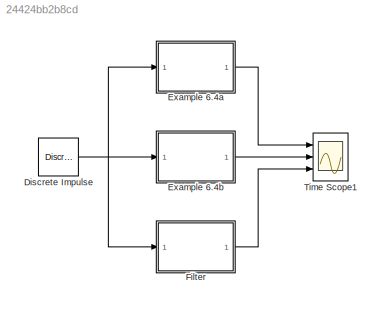
MODEL slx_24424bb2b8cd
KIND model
BLOCK [Reference] Discrete Impulse  REF=dspsrcs4/Discrete 
Impulse
  Delay = 0
  FrameSample = 1
  LastOutDataTypeStr = double
  OutDataTypeStr = double
  Ports = [0, 1]
  SampleTime = 1
  SourceBlock = dspsrcs4/Discrete \nImpulse
  SourceType = Discrete Impulse
  additionalParams = off
  allowOverrides = on
  dataType = double
  fracBitsMode = Best precision
  isSigned = on
  numFracBits = 15
  udDataType = sfix(16)
  wordLen = 16
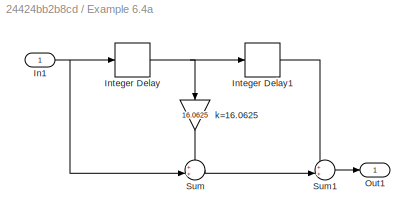
BLOCK [SubSystem] Example 6.4a
  Ports = [1, 1]
  RequestExecContextInheritance = off
BLOCK [Inport] Example 6.4a/In1
  IconDisplay = Port number
BLOCK [Delay] Example 6.4a/Integer Delay
  DelayLength = 4
  InputPortMap = u0
  InputProcessing = Inherited
  Ports = [1, 1]
BLOCK [Delay] Example 6.4a/Integer Delay1
  DelayLength = 4
  InputPortMap = u0
  InputProcessing = Inherited
  Ports = [1, 1]
BLOCK [Outport] Example 6.4a/Out1
  IconDisplay = Port number
BLOCK [Sum] Example 6.4a/Sum
  IconShape = round
  InputSameDT = off
  Inputs = ++|
  OutDataTypeStr = Inherit: Inherit via internal rule
  Ports = [2, 1]
  SaturateOnIntegerOverflow = off
BLOCK [Sum] Example 6.4a/Sum1
  IconShape = round
  InputSameDT = off
  Inputs = ++|
  OutDataTypeStr = Inherit: Inherit via internal rule
  Ports = [2, 1]
  SaturateOnIntegerOverflow = off
BLOCK [Gain] Example 6.4a/k=16.0625
  Gain = 16.0625
  OutDataTypeStr = Inherit: Inherit via internal rule
  ParamDataTypeStr = Inherit: Inherit via internal rule
  SaturateOnIntegerOverflow = off
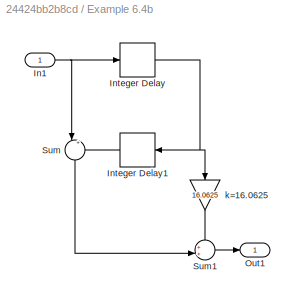
BLOCK [SubSystem] Example 6.4b
  Ports = [1, 1]
  RequestExecContextInheritance = off
BLOCK [Inport] Example 6.4b/In1
  IconDisplay = Port number
BLOCK [Delay] Example 6.4b/Integer Delay
  DelayLength = 4
  InputPortMap = u0
  InputProcessing = Inherited
  Ports = [1, 1]
BLOCK [Delay] Example 6.4b/Integer Delay1
  DelayLength = 4
  InputPortMap = u0
  InputProcessing = Inherited
  Ports = [1, 1]
BLOCK [Outport] Example 6.4b/Out1
  IconDisplay = Port number
BLOCK [Sum] Example 6.4b/Sum
  IconShape = round
  InputSameDT = off
  Inputs = |++
  OutDataTypeStr = Inherit: Inherit via internal rule
  Ports = [2, 1]
  SaturateOnIntegerOverflow = off
BLOCK [Sum] Example 6.4b/Sum1
  IconShape = round
  InputSameDT = off
  Inputs = ++|
  OutDataTypeStr = Inherit: Inherit via internal rule
  Ports = [2, 1]
  SaturateOnIntegerOverflow = off
BLOCK [Gain] Example 6.4b/k=16.0625
  Gain = 16.0625
  OutDataTypeStr = Inherit: Inherit via internal rule
  ParamDataTypeStr = Inherit: Inherit via internal rule
  SaturateOnIntegerOverflow = off
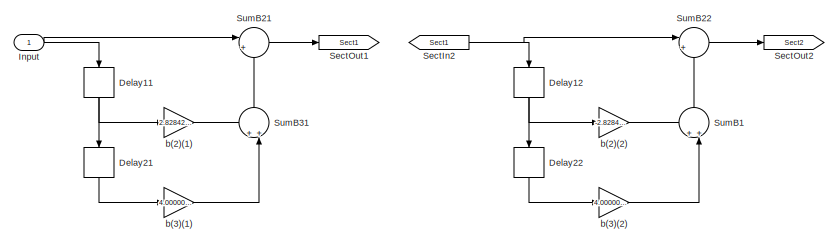
[diagram: Filter - part 1/2, left side, full height]
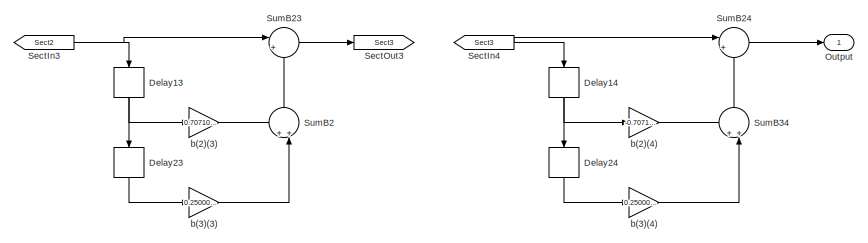
[diagram: Filter - part 2/2, right side, full height]
BLOCK [SubSystem] Filter
  ErrorFcn = dspFilterRealizedInBasicElemsAlgLoopErrFcnCallback
  Ports = [1, 1]
  RequestExecContextInheritance = off
  Tag = FilterWizardSubSystem
  UserDataPersistent = on
BLOCK [Delay] Filter/Delay11
  DelayLength = 1
  InputPortMap = u0
  InputProcessing = Inherited
  Ports = [1, 1]
BLOCK [Delay] Filter/Delay12
  DelayLength = 1
  InputPortMap = u0
  InputProcessing = Inherited
  Ports = [1, 1]
BLOCK [Delay] Filter/Delay13
  DelayLength = 1
  InputPortMap = u0
  InputProcessing = Inherited
  Ports = [1, 1]
BLOCK [Delay] Filter/Delay14
  DelayLength = 1
  InputPortMap = u0
  InputProcessing = Inherited
  Ports = [1, 1]
BLOCK [Delay] Filter/Delay21
  DelayLength = 1
  InputPortMap = u0
  InputProcessing = Inherited
  Ports = [1, 1]
BLOCK [Delay] Filter/Delay22
  DelayLength = 1
  InputPortMap = u0
  InputProcessing = Inherited
  Ports = [1, 1]
BLOCK [Delay] Filter/Delay23
  DelayLength = 1
  InputPortMap = u0
  InputProcessing = Inherited
  Ports = [1, 1]
BLOCK [Delay] Filter/Delay24
  DelayLength = 1
  InputPortMap = u0
  InputProcessing = Inherited
  Ports = [1, 1]
BLOCK [Inport] Filter/Input
  IconDisplay = Port number
BLOCK [Outport] Filter/Output
  IconDisplay = Port number
BLOCK [From] Filter/SectIn2
  GotoTag = Sect1
BLOCK [From] Filter/SectIn3
  GotoTag = Sect2
BLOCK [From] Filter/SectIn4
  GotoTag = Sect3
BLOCK [Goto] Filter/SectOut1
  GotoTag = Sect1
BLOCK [Goto] Filter/SectOut2
  GotoTag = Sect2
BLOCK [Goto] Filter/SectOut3
  GotoTag = Sect3
BLOCK [Sum] Filter/SumB1
  IconShape = round
  InputSameDT = off
  Inputs = ++|
  Ports = [2, 1]
  RndMeth = Nearest
BLOCK [Sum] Filter/SumB2
  IconShape = round
  InputSameDT = off
  Inputs = ++|
  Ports = [2, 1]
  RndMeth = Nearest
BLOCK [Sum] Filter/SumB21
  IconShape = round
  InputSameDT = off
  Inputs = |++
  Ports = [2, 1]
  RndMeth = Nearest
BLOCK [Sum] Filter/SumB22
  IconShape = round
  InputSameDT = off
  Inputs = |++
  Ports = [2, 1]
  RndMeth = Nearest
BLOCK [Sum] Filter/SumB23
  IconShape = round
  InputSameDT = off
  Inputs = |++
  Ports = [2, 1]
  RndMeth = Nearest
BLOCK [Sum] Filter/SumB24
  IconShape = round
  InputSameDT = off
  Inputs = |++
  Ports = [2, 1]
  RndMeth = Nearest
BLOCK [Sum] Filter/SumB31
  IconShape = round
  InputSameDT = off
  Inputs = ++|
  Ports = [2, 1]
  RndMeth = Nearest
BLOCK [Sum] Filter/SumB34
  IconShape = round
  InputSameDT = off
  Inputs = ++|
  Ports = [2, 1]
  RndMeth = Nearest
BLOCK [Gain] Filter/b(2)(1)
  Gain = 2.8284271247461956
  ParamDataTypeStr = float('double')
  RndMeth = Nearest
BLOCK [Gain] Filter/b(2)(2)
  Gain = -2.8284271247461925
  ParamDataTypeStr = float('double')
  RndMeth = Nearest
BLOCK [Gain] Filter/b(2)(3)
  Gain = 0.70710678118654791
  ParamDataTypeStr = float('double')
  RndMeth = Nearest
BLOCK [Gain] Filter/b(2)(4)
  Gain = -0.70710678118654757
  ParamDataTypeStr = float('double')
  RndMeth = Nearest
BLOCK [Gain] Filter/b(3)(1)
  Gain = 4.0000000000000151
  ParamDataTypeStr = float('double')
  RndMeth = Nearest
BLOCK [Gain] Filter/b(3)(2)
  Gain = 4.0000000000000053
  ParamDataTypeStr = float('double')
  RndMeth = Nearest
BLOCK [Gain] Filter/b(3)(3)
  Gain = 0.25000000000000022
  ParamDataTypeStr = float('double')
  RndMeth = Nearest
BLOCK [Gain] Filter/b(3)(4)
  Gain = 0.25000000000000011
  ParamDataTypeStr = float('double')
  RndMeth = Nearest
BLOCK [Scope] Time Scope1
  DataFormat = Structure
  Floating = off
  NumInputPorts = 3
  Ports = [3]
  SampleTime = 0
  ShowLegends = off
  YMax = 20~20~20
  YMin = -10~-10~-10
NET Discrete Impulse:1 -> Example 6.4a:1, Example 6.4b:1, Filter:1
NET Example 6.4a/In1:1 -> Example 6.4a/Integer Delay:1, Example 6.4a/Sum:2
LINE Example 6.4a/Integer Delay1:1 -> Example 6.4a/Sum1:1
NET Example 6.4a/Integer Delay:1 -> Example 6.4a/Integer Delay1:1, Example 6.4a/k=16.0625:1
LINE Example 6.4a/Sum1:1 -> Example 6.4a/Out1:1
LINE Example 6.4a/Sum:1 -> Example 6.4a/Sum1:2
LINE Example 6.4a/k=16.0625:1 -> Example 6.4a/Sum:1
LINE Example 6.4a:1 -> Time Scope1:1
NET Example 6.4b/In1:1 -> Example 6.4b/Integer Delay:1, Example 6.4b/Sum:1
LINE Example 6.4b/Integer Delay1:1 -> Example 6.4b/Sum:2
NET Example 6.4b/Integer Delay:1 -> Example 6.4b/Integer Delay1:1, Example 6.4b/k=16.0625:1
LINE Example 6.4b/Sum1:1 -> Example 6.4b/Out1:1
LINE Example 6.4b/Sum:1 -> Example 6.4b/Sum1:2
LINE Example 6.4b/k=16.0625:1 -> Example 6.4b/Sum1:1
LINE Example 6.4b:1 -> Time Scope1:2
NET Filter/Delay11:1 -> Filter/Delay21:1, Filter/b(2)(1):1
NET Filter/Delay12:1 -> Filter/Delay22:1, Filter/b(2)(2):1
NET Filter/Delay13:1 -> Filter/Delay23:1, Filter/b(2)(3):1
NET Filter/Delay14:1 -> Filter/Delay24:1, Filter/b(2)(4):1
LINE Filter/Delay21:1 -> Filter/b(3)(1):1
LINE Filter/Delay22:1 -> Filter/b(3)(2):1
LINE Filter/Delay23:1 -> Filter/b(3)(3):1
LINE Filter/Delay24:1 -> Filter/b(3)(4):1
NET Filter/Input:1 -> Filter/Delay11:1, Filter/SumB21:1
NET Filter/SectIn2:1 -> Filter/Delay12:1, Filter/SumB22:1
NET Filter/SectIn3:1 -> Filter/Delay13:1, Filter/SumB23:1
NET Filter/SectIn4:1 -> Filter/Delay14:1, Filter/SumB24:1
LINE Filter/SumB1:1 -> Filter/SumB22:2
LINE Filter/SumB21:1 -> Filter/SectOut1:1
LINE Filter/SumB22:1 -> Filter/SectOut2:1
LINE Filter/SumB23:1 -> Filter/SectOut3:1
LINE Filter/SumB24:1 -> Filter/Output:1
LINE Filter/SumB2:1 -> Filter/SumB23:2
LINE Filter/SumB31:1 -> Filter/SumB21:2
LINE Filter/SumB34:1 -> Filter/SumB24:2
LINE Filter/b(2)(1):1 -> Filter/SumB31:1
LINE Filter/b(2)(2):1 -> Filter/SumB1:1
LINE Filter/b(2)(3):1 -> Filter/SumB2:1
LINE Filter/b(2)(4):1 -> Filter/SumB34:1
LINE Filter/b(3)(1):1 -> Filter/SumB31:2
LINE Filter/b(3)(2):1 -> Filter/SumB1:2
LINE Filter/b(3)(3):1 -> Filter/SumB2:2
LINE Filter/b(3)(4):1 -> Filter/SumB34:2
LINE Filter:1 -> Time Scope1:3
note: NET lines group one-source signal fan-out (src -> all destinations, sorted); 1:1 wires keep LINE
